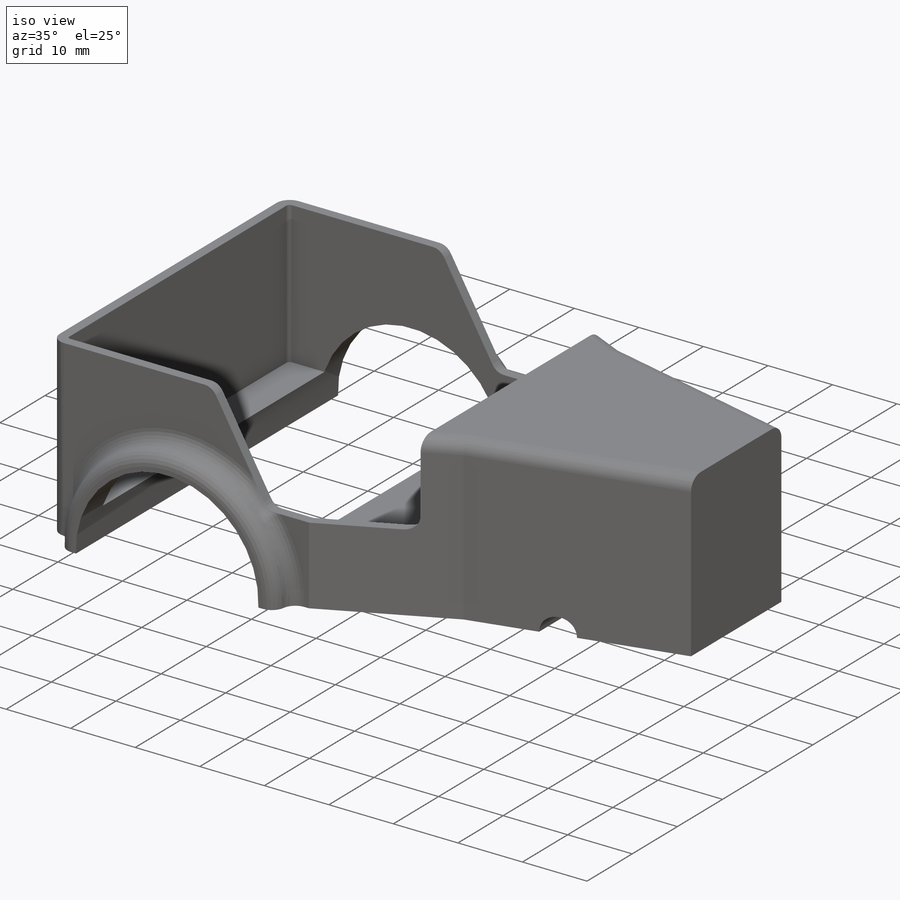
[diagram: iso view]
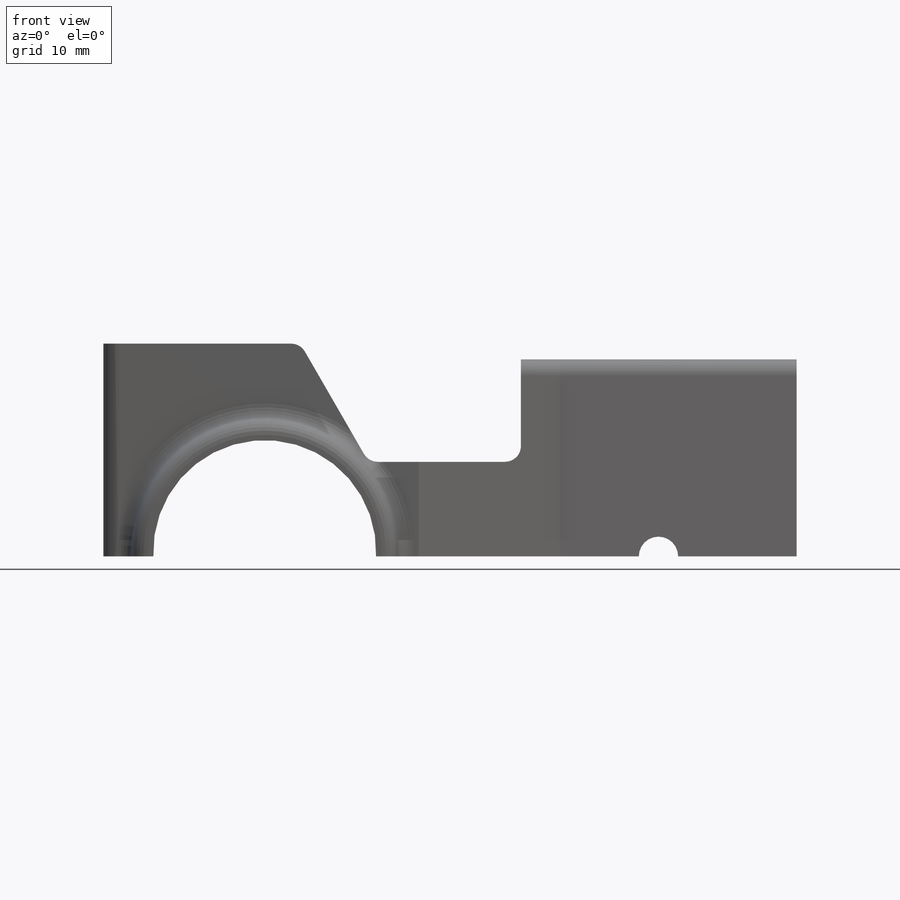
[diagram: front view]
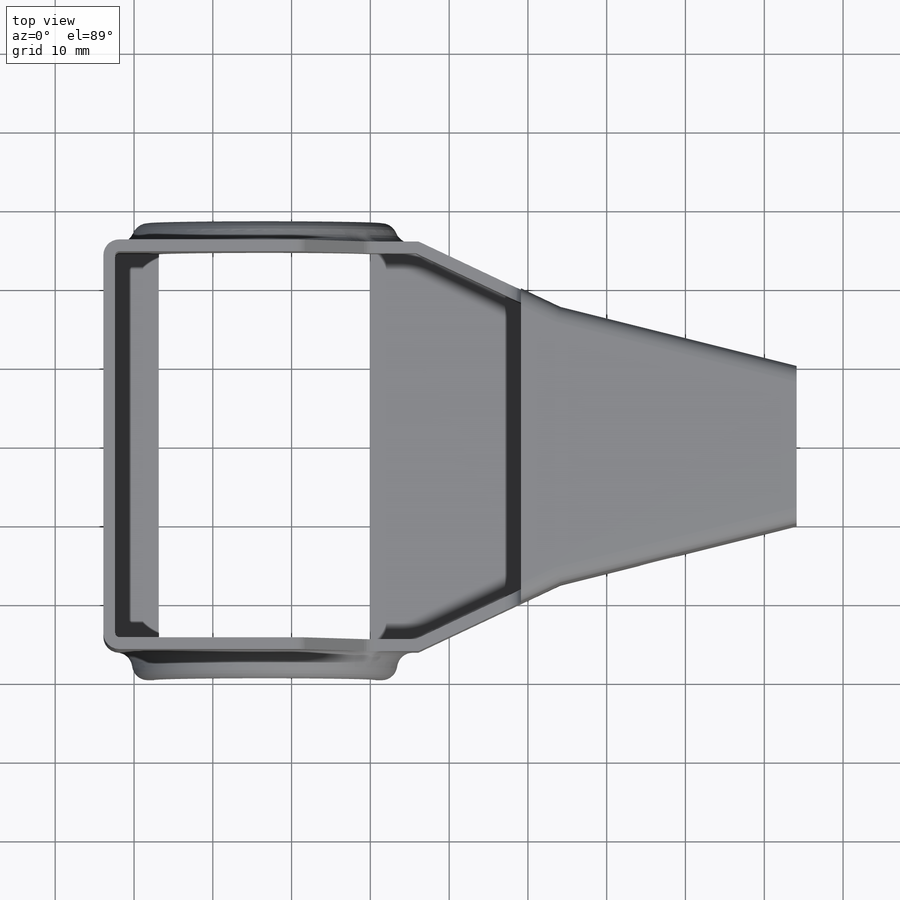
[diagram: top view]
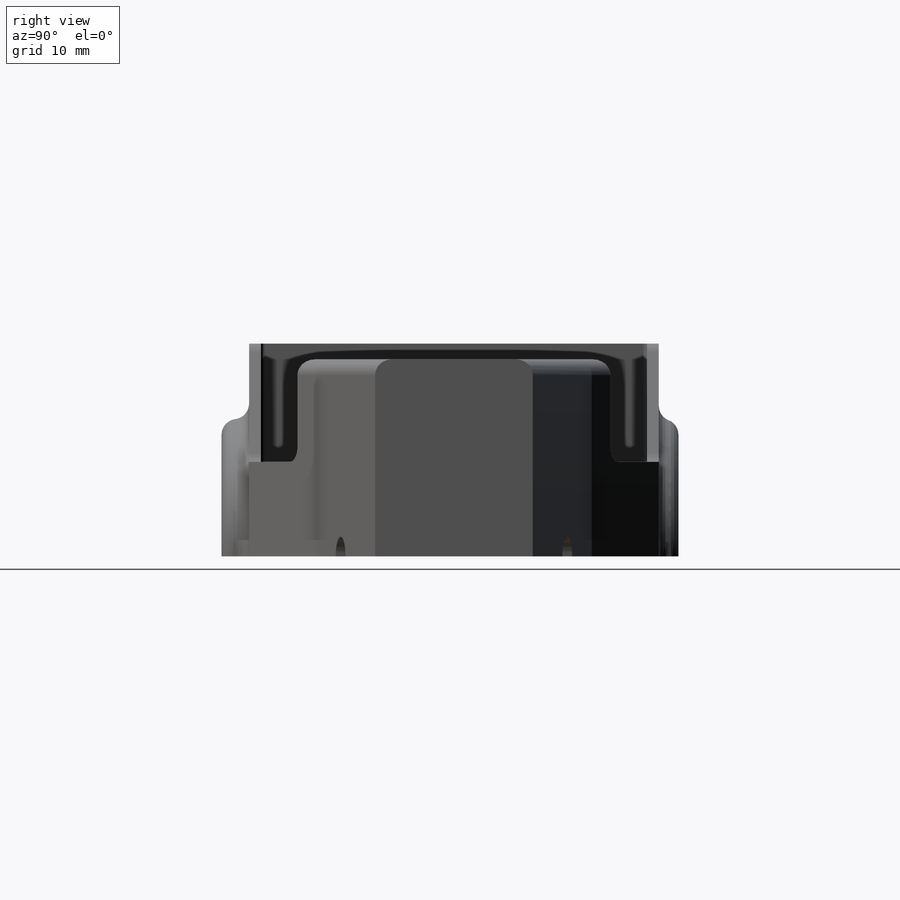
[diagram: right view]
SOLIDWORKS PART (.sldprt)
format: sldprt  version: not decoded by parser v0  size: 560,128 bytes
history: native  units: mm
features: sketch x10, fillet x8, extrude x5, cut_extrude x4, shell x2, material x1, plane x1 (+13 scaffold rows collapsed)
feature tree (44):
  scaffold x13  (default folders/planes/origin — collapsed)
  material  "Material <not specified>"
  sketch  "Sketch1"  dims[c1.D1=52.0mm c1.D2=20.0mm c1.D3=35.0mm c1.D4=30.0mm c1.D5=40.0mm c1.D6=18.0mm c1.D7=~19.906029mm c2.D7=~191.241479deg]
  extrude  "Boss-Extrude1"  Depth=5mm
  sketch  "Sketch2"  dims[D1=35.0mm]
  extrude  "Boss-Extrude2"  Depth=20mm
  fillet  "Fillet1"  Radius=2mm
  shell  "Shell6"  Thickness=5mm
  shell  "Shell9"  Thickness=4mm
  fillet  "Fillet3"  Radius=2mm
  fillet  "Fillet5"  Radius=2mm
  plane  "Plane1"
  sketch  "Sketch6"  dims[D1=0.0mm D2=1.5mm]
  extrude  "Boss-Extrude4"  Depth=22mm
  sketch  "Sketch7"  dims[c1.D1=~8.915788mm c2.D1=120.0deg c2.D2=12.0mm c2.D3=25.0mm]
  cut_extrude  "Cut-Extrude2"  Depth=20mm
  fillet  "Fillet6"  Radius=2mm
  sketch  "Sketch10"  dims[D2=~14.145666mm D1=2.3mm]
  cut_extrude  "Cut-Extrude4"  Depth=10mm
  sketch  "Sketch11"  dims[D1=2.7mm]
  extrude  "Boss-Extrude5"  Depth=3.5mm
  fillet  "Fillet7"  Radius=2mm
  fillet  "Fillet8"  Radius=2mm
  sketch  "Sketch12"  dims[D1=2.7mm]
  extrude  "Boss-Extrude6"  Depth=2.5mm
  fillet  "Fillet9"  Radius=2mm
  fillet  "Fillet10"  Radius=2mm
  sketch  "Sketch13"
  sketch  "Sketch14"  dims[D1=15.5mm D2=30.0mm]
  cut_extrude  "Cut-Extrude5"  Depth=5mm
  sketch  "Sketch15"  dims[D1=30.0mm]
  cut_extrude  "Cut-Extrude6"  Depth=5mm
decode coverage: 28 of 29 modeling features carry decoded parameters
note: ~ marks probable driven/reference dimensions
note: suppression state not decoded; provenance and decode notes live in map.json
